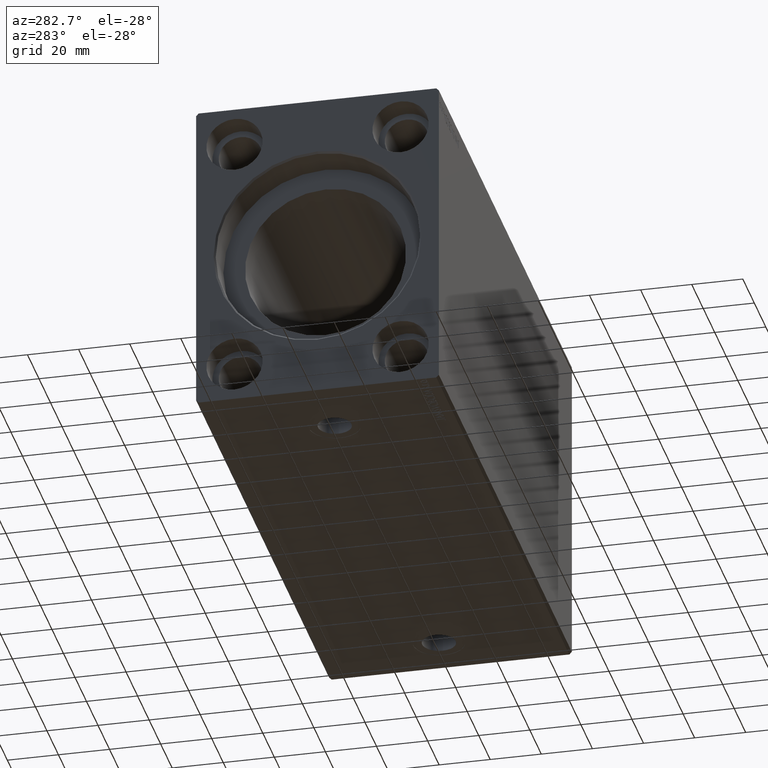
[diagram: clean part render]
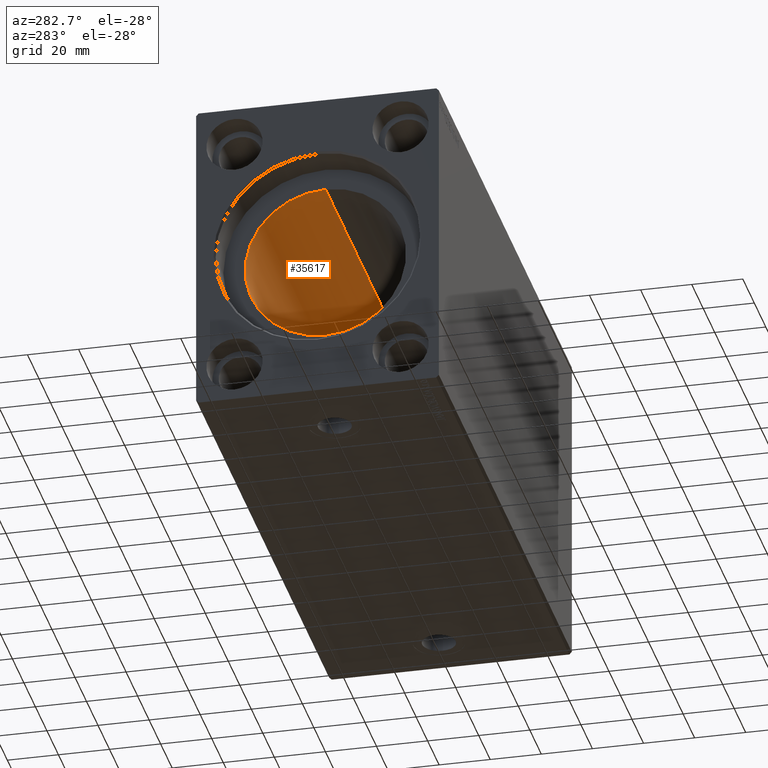
[diagram: same view with one face highlighted and labeled with its STEP entity id]
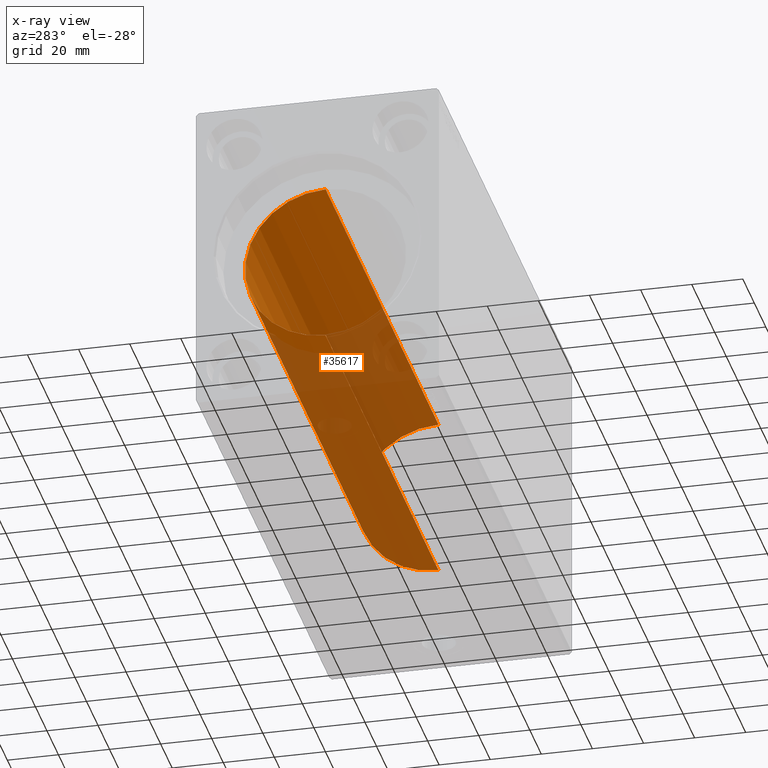
[diagram: x-ray of the same camera — body ghosted, the highlighted face saturated]
A machine part, auxiliary view. The second image highlights one B-rep face of the part: STEP entity #35617.
The next image is the same camera in x-ray: the body ghosted, the highlighted face saturated — about 58% of this face is hidden behind the body in this view.
In plain terms, the highlighted cylindrical surface (partial cylindrical patch) has radius 31.5 mm, axis along (-1, -0, -0).
Its self-contained STEP definition (entity closure, byte-faithful):
#4452 = CYLINDRICAL_SURFACE ( 'NONE', #23825, 31.50000000000000000 ) ;
#4882 = CARTESIAN_POINT ( 'NONE',  ( 210.1999999999999886, 0.000000000000000000, 0.000000000000000000 ) ) ;
#5418 = ORIENTED_EDGE ( 'NONE', *, *, #11960, .T. ) ;
#6877 = LINE ( 'NONE', #35868, #7735 ) ;
#7478 = VERTEX_POINT ( 'NONE', #11912 ) ;
#7735 = VECTOR ( 'NONE', #19548, 1000.000000000000000 ) ;
#7889 = DIRECTION ( 'NONE',  ( 0.000000000000000000, 0.000000000000000000, 1.000000000000000000 ) ) ;
#8180 = CARTESIAN_POINT ( 'NONE',  ( 210.1999999999999886, 0.000000000000000000, 31.50000000000000000 ) ) ;
#11912 = CARTESIAN_POINT ( 'NONE',  ( 210.1999999999999886, 3.857637417314162689E-15, -31.50000000000000000 ) ) ;
#11960 = EDGE_CURVE ( 'NONE', #36247, #20088, #18085, .T. ) ;
#12751 = CARTESIAN_POINT ( 'NONE',  ( 210.1999999999999886, 0.000000000000000000, 31.50000000000000000 ) ) ;
#14347 = CARTESIAN_POINT ( 'NONE',  ( 210.1999999999999886, 0.000000000000000000, 0.000000000000000000 ) ) ;
#15478 = EDGE_CURVE ( 'NONE', #7478, #20088, #6877, .T. ) ;
#15994 = EDGE_CURVE ( 'NONE', #39710, #36247, #22205, .T. ) ;
#16206 = ORIENTED_EDGE ( 'NONE', *, *, #15994, .T. ) ;
#17141 = FACE_OUTER_BOUND ( 'NONE', #33726, .T. ) ;
#18085 = CIRCLE ( 'NONE', #42092, 31.50000000000000000 ) ;
#19548 = DIRECTION ( 'NONE',  ( -1.000000000000000000, -0.000000000000000000, -0.000000000000000000 ) ) ;
#20088 = VERTEX_POINT ( 'NONE', #25884 ) ;
#20858 = CARTESIAN_POINT ( 'NONE',  ( 14.00000000000001243, 0.000000000000000000, 0.000000000000000000 ) ) ;
#22205 = LINE ( 'NONE', #12751, #38648 ) ;
#23561 = ORIENTED_EDGE ( 'NONE', *, *, #15478, .F. ) ;
#23825 = AXIS2_PLACEMENT_3D ( 'NONE', #4882, #27440, #7889 ) ;
#25884 = CARTESIAN_POINT ( 'NONE',  ( 14.00000000000001243, 3.857637417314162689E-15, -31.50000000000000000 ) ) ;
#27440 = DIRECTION ( 'NONE',  ( -1.000000000000000000, -0.000000000000000000, -0.000000000000000000 ) ) ;
#27447 = DIRECTION ( 'NONE',  ( -1.000000000000000000, 0.000000000000000000, 0.000000000000000000 ) ) ;
#27713 = CARTESIAN_POINT ( 'NONE',  ( 14.00000000000001243, 0.000000000000000000, 31.50000000000000000 ) ) ;
#27942 = CIRCLE ( 'NONE', #39580, 31.50000000000000000 ) ;
#28116 = DIRECTION ( 'NONE',  ( 0.000000000000000000, 0.000000000000000000, 1.000000000000000000 ) ) ;
#33602 = EDGE_CURVE ( 'NONE', #39710, #7478, #27942, .T. ) ;
#33726 = EDGE_LOOP ( 'NONE', ( #23561, #38704, #16206, #5418 ) ) ;
#35312 = DIRECTION ( 'NONE',  ( -1.000000000000000000, -0.000000000000000000, -0.000000000000000000 ) ) ;
#35617 = ADVANCED_FACE ( 'NONE', ( #17141 ), #4452, .F. ) ;
#35868 = CARTESIAN_POINT ( 'NONE',  ( 210.1999999999999886, 3.857637417314162689E-15, -31.50000000000000000 ) ) ;
#36247 = VERTEX_POINT ( 'NONE', #27713 ) ;
#38648 = VECTOR ( 'NONE', #35312, 1000.000000000000000 ) ;
#38704 = ORIENTED_EDGE ( 'NONE', *, *, #33602, .F. ) ;
#39580 = AXIS2_PLACEMENT_3D ( 'NONE', #14347, #27447, #40546 ) ;
#39710 = VERTEX_POINT ( 'NONE', #8180 ) ;
#39780 = DIRECTION ( 'NONE',  ( -1.000000000000000000, 0.000000000000000000, 0.000000000000000000 ) ) ;
#40546 = DIRECTION ( 'NONE',  ( 0.000000000000000000, 0.000000000000000000, 1.000000000000000000 ) ) ;
#42092 = AXIS2_PLACEMENT_3D ( 'NONE', #20858, #39780, #28116 ) ;